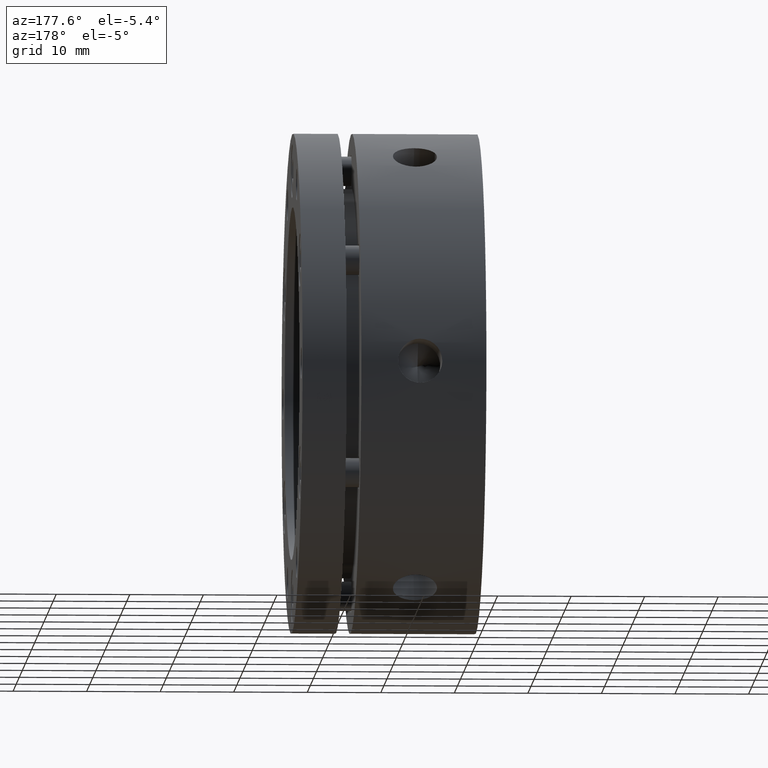
[diagram: clean part render]
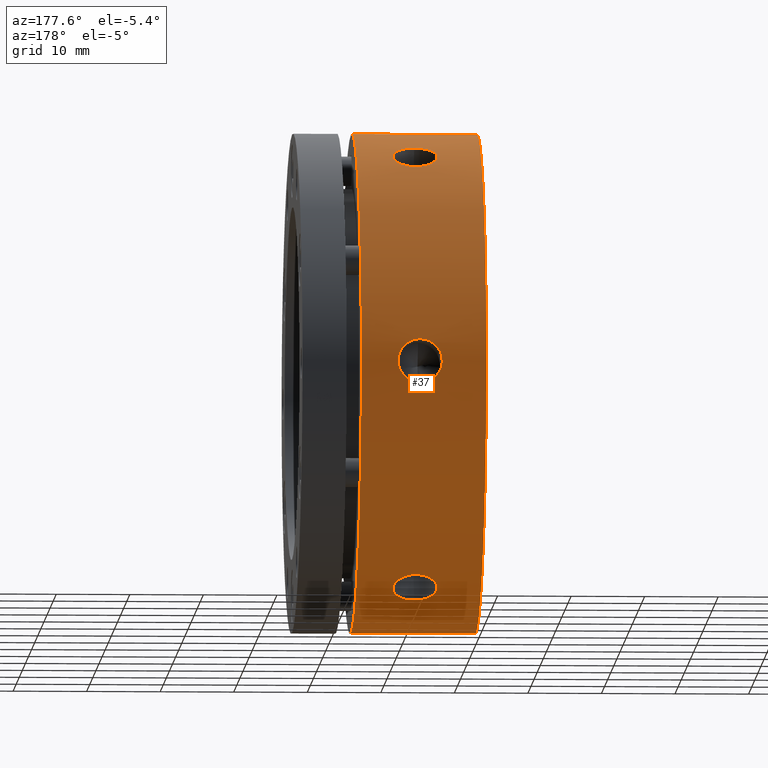
[diagram: same view with one face highlighted and labeled with its STEP entity id]
A machine part, auxiliary view. The second image highlights one B-rep face of the part: STEP entity #37.
In plain terms, the highlighted cylindrical surface (partial cylindrical patch) has radius 34 mm, axis along (1, 0, 0).
Its self-contained STEP definition (entity closure, byte-faithful):
#37 = ADVANCED_FACE ( 'NONE', ( #1741, #1748, #1744, #1743 ), #1752, .T. ) ;
#176 = DIRECTION ( 'NONE',  ( 0.0000000000000000000, 0.0000000000000000000, -1.000000000000000000 ) ) ;
#177 = CARTESIAN_POINT ( 'NONE',  ( 12.49999999999999300, 0.0000000000000000000, 0.0000000000000000000 ) ) ;
#178 = DIRECTION ( 'NONE',  ( 1.000000000000000000, 0.0000000000000000000, 0.0000000000000000000 ) ) ;
#592 = CARTESIAN_POINT ( 'NONE',  ( 8.999999999999989300, 14.33561801052278300, -30.83001875212493200 ) ) ;
#594 = CARTESIAN_POINT ( 'NONE',  ( 8.999999999999989300, 33.86738844375220500, 2.999999999999989300 ) ) ;
#595 = CARTESIAN_POINT ( 'NONE',  ( 8.999999999999989300, 33.86738844375219800, -3.000000000000011100 ) ) ;
#596 = CARTESIAN_POINT ( 'NONE',  ( -8.673617379884035500E-015, 4.163799117101000600E-015, 34.00000000000000000 ) ) ;
#597 = CARTESIAN_POINT ( 'NONE',  ( 16.99999999999999600, 0.0000000000000000000, -34.00000000000000000 ) ) ;
#599 = CARTESIAN_POINT ( 'NONE',  ( 8.999999999999989300, 19.53177043322941800, -27.83001875212493200 ) ) ;
#602 = CARTESIAN_POINT ( 'NONE',  ( 16.99999999999999600, 4.163799117101000600E-015, 34.00000000000000000 ) ) ;
#606 = CARTESIAN_POINT ( 'NONE',  ( 8.999999999999989300, 14.33561801052280800, 30.83001875212492100 ) ) ;
#607 = CARTESIAN_POINT ( 'NONE',  ( -8.673617379884035500E-015, 0.0000000000000000000, -34.00000000000000000 ) ) ;
#608 = CARTESIAN_POINT ( 'NONE',  ( 8.999999999999989300, 19.53177043322944300, 27.83001875212492100 ) ) ;
#1112 = EDGE_LOOP ( 'NONE', ( #3016, #3030 ) ) ;
#1114 = EDGE_LOOP ( 'NONE', ( #3050, #3045 ) ) ;
#1117 = EDGE_LOOP ( 'NONE', ( #2999, #3037, #3028, #2994 ) ) ;
#1120 = EDGE_LOOP ( 'NONE', ( #3036, #3025 ) ) ;
#1285 = VERTEX_POINT ( 'NONE', #595 ) ;
#1286 = VERTEX_POINT ( 'NONE', #596 ) ;
#1287 = VERTEX_POINT ( 'NONE', #592 ) ;
#1288 = VERTEX_POINT ( 'NONE', #597 ) ;
#1289 = VERTEX_POINT ( 'NONE', #599 ) ;
#1292 = VERTEX_POINT ( 'NONE', #594 ) ;
#1294 = VERTEX_POINT ( 'NONE', #602 ) ;
#1298 = VERTEX_POINT ( 'NONE', #606 ) ;
#1299 = VERTEX_POINT ( 'NONE', #607 ) ;
#1300 = VERTEX_POINT ( 'NONE', #608 ) ;
#1451 = EDGE_CURVE ( 'NONE', #1286, #1294, #2393, .T. ) ;
#1452 = EDGE_CURVE ( 'NONE', #1300, #1298, #2863, .T. ) ;
#1453 = EDGE_CURVE ( 'NONE', #1292, #1285, #2864, .T. ) ;
#1454 = EDGE_CURVE ( 'NONE', #1287, #1289, #2865, .T. ) ;
#1455 = EDGE_CURVE ( 'NONE', #1289, #1287, #2866, .T. ) ;
#1456 = EDGE_CURVE ( 'NONE', #1299, #1286, #2397, .T. ) ;
#1457 = EDGE_CURVE ( 'NONE', #1285, #1292, #2867, .T. ) ;
#1458 = EDGE_CURVE ( 'NONE', #1298, #1300, #2868, .T. ) ;
#1459 = EDGE_CURVE ( 'NONE', #1294, #1288, #2394, .T. ) ;
#1460 = EDGE_CURVE ( 'NONE', #1299, #1288, #2398, .T. ) ;
#1741 = FACE_BOUND ( 'NONE', #1120, .T. ) ;
#1743 = FACE_OUTER_BOUND ( 'NONE', #1117, .T. ) ;
#1744 = FACE_BOUND ( 'NONE', #1114, .T. ) ;
#1748 = FACE_BOUND ( 'NONE', #1112, .T. ) ;
#1752 = CYLINDRICAL_SURFACE ( 'NONE', #1926, 34.00000000000000000 ) ;
#1926 = AXIS2_PLACEMENT_3D ( 'NONE', #177, #178, #176 ) ;
#2105 = AXIS2_PLACEMENT_3D ( 'NONE', #4524, #4525, #4526 ) ;
#2106 = AXIS2_PLACEMENT_3D ( 'NONE', #4594, #4595, #4596 ) ;
#2393 = LINE ( 'NONE', #4383, #2396 ) ;
#2394 = CIRCLE ( 'NONE', #2106, 34.00000000000000000 ) ;
#2396 = VECTOR ( 'NONE', #4365, 1000.000000000000000 ) ;
#2397 = CIRCLE ( 'NONE', #2105, 34.00000000000000000 ) ;
#2398 = LINE ( 'NONE', #4561, #2400 ) ;
#2400 = VECTOR ( 'NONE', #4560, 1000.000000000000000 ) ;
#2863 = B_SPLINE_CURVE_WITH_KNOTS ( 'NONE', 3,
 ( #4387, #4369, #4390, #4391, #4392, #4393, #4394, #4395, #4396, #4397, #4398, #4399, #4400, #4401, #4402, #4403, #4404, #4405, #4406, #4407, #4408, #4409, #4410, #4411, #4412, #4413, #4414, #4415, #4416, #4417, #4418, #4419, #4420, #4421 ),
 .UNSPECIFIED., .F., .F.,
 ( 4, 2, 2, 2, 2, 2, 2, 2, 2, 2, 2, 2, 2, 2, 2, 2, 4 ),
 ( 0.004693045410762529700, 0.005279413698573366000, 0.005865781986384202200, 0.006452150274195037600, 0.007038518562005873800, 0.007624886849816710000, 0.008211255137627545400, 0.008797623425438381600, 0.009383991713249217900, 0.009970360001060054100, 0.01055672828887089000, 0.01114309657668172500, 0.01172946486449256300, 0.01231583315230339700, 0.01290220144011423400, 0.01348856972792507000, 0.01407493801573590600 ),
 .UNSPECIFIED. ) ;
#2864 = B_SPLINE_CURVE_WITH_KNOTS ( 'NONE', 3,
 ( #4382, #4388, #4424, #4425, #4426, #4427, #4428, #4429, #4430, #4431, #4432, #4433, #4434, #4435, #4436, #4437, #4438, #4439, #4440, #4441, #4442, #4443, #4444, #4445, #4446, #4447, #4448, #4449, #4450, #4451, #4452, #4453, #4454, #4455 ),
 .UNSPECIFIED., .F., .F.,
 ( 4, 2, 2, 2, 2, 2, 2, 2, 2, 2, 2, 2, 2, 2, 2, 2, 4 ),
 ( 0.01407493801573589000, 0.01466130630313676800, 0.01524767459053764600, 0.01583404287793852400, 0.01642041116533940100, 0.01700677945274027900, 0.01759314774014115700, 0.01817951602754203400, 0.01876588431494291200, 0.01935225260234379000, 0.01993862088974466700, 0.02052498917714554500, 0.02111135746454642300, 0.02169772575194730100, 0.02228409403934817800, 0.02287046232674905600, 0.02345683061414993400 ),
 .UNSPECIFIED. ) ;
#2865 = B_SPLINE_CURVE_WITH_KNOTS ( 'NONE', 3,
 ( #4389, #4422, #4457, #4458, #4459, #4460, #4461, #4462, #4463, #4464, #4465, #4466, #4467, #4468, #4469, #4470, #4471, #4472, #4473, #4474, #4475, #4476, #4477, #4478, #4479, #4480, #4481, #4482, #4483, #4484, #4485, #4486, #4487, #4488 ),
 .UNSPECIFIED., .F., .F.,
 ( 4, 2, 2, 2, 2, 2, 2, 2, 2, 2, 2, 2, 2, 2, 2, 2, 4 ),
 ( 0.004693045410762527100, 0.005279413698573366000, 0.005865781986384205700, 0.006452150274195044500, 0.007038518562005883400, 0.007624886849816723100, 0.008211255137627559300, 0.008797623425438393800, 0.009383991713249228300, 0.009970360001060066300, 0.01055672828887090100, 0.01114309657668173500, 0.01172946486449257000, 0.01231583315230340400, 0.01290220144011424200, 0.01348856972792507300, 0.01407493801573591100 ),
 .UNSPECIFIED. ) ;
#2866 = B_SPLINE_CURVE_WITH_KNOTS ( 'NONE', 3,
 ( #4423, #4456, #4490, #4491, #4492, #4493, #4494, #4495, #4496, #4497, #4498, #4499, #4500, #4501, #4502, #4503, #4504, #4505, #4506, #4507, #4508, #4509, #4510, #4511, #4512, #4513, #4514, #4515, #4516, #4517, #4518, #4519, #4520, #4521 ),
 .UNSPECIFIED., .F., .F.,
 ( 4, 2, 2, 2, 2, 2, 2, 2, 2, 2, 2, 2, 2, 2, 2, 2, 4 ),
 ( 0.01407493801573591100, 0.01466130630313678900, 0.01524767459053766800, 0.01583404287793854800, 0.01642041116533942600, 0.01700677945274030300, 0.01759314774014118100, 0.01817951602754206200, 0.01876588431494294000, 0.01935225260234381800, 0.01993862088974469900, 0.02052498917714557600, 0.02111135746454645400, 0.02169772575194733200, 0.02228409403934821000, 0.02287046232674909100, 0.02345683061414996800 ),
 .UNSPECIFIED. ) ;
#2867 = B_SPLINE_CURVE_WITH_KNOTS ( 'NONE', 3,
 ( #4522, #4523, #4528, #4529, #4530, #4531, #4532, #4533, #4534, #4535, #4536, #4537, #4538, #4539, #4540, #4541, #4542, #4543, #4544, #4545, #4546, #4547, #4548, #4549, #4550, #4551, #4552, #4553, #4554, #4555, #4556, #4557, #4558, #4559 ),
 .UNSPECIFIED., .F., .F.,
 ( 4, 2, 2, 2, 2, 2, 2, 2, 2, 2, 2, 2, 2, 2, 2, 2, 4 ),
 ( 0.004693045410762521100, 0.005279413698573355600, 0.005865781986384190900, 0.006452150274195025400, 0.007038518562005860800, 0.007624886849816695300, 0.008211255137627531500, 0.008797623425438367800, 0.009383991713249204000, 0.009970360001060038500, 0.01055672828887087500, 0.01114309657668171100, 0.01172946486449254700, 0.01231583315230338300, 0.01290220144011421800, 0.01348856972792505400, 0.01407493801573589000 ),
 .UNSPECIFIED. ) ;
#2868 = B_SPLINE_CURVE_WITH_KNOTS ( 'NONE', 3,
 ( #4489, #4527, #4562, #4563, #4564, #4565, #4566, #4567, #4568, #4569, #4570, #4571, #4572, #4573, #4574, #4575, #4576, #4577, #4578, #4579, #4580, #4581, #4582, #4583, #4584, #4585, #4586, #4587, #4588, #4589, #4590, #4591, #4592, #4593 ),
 .UNSPECIFIED., .F., .F.,
 ( 4, 2, 2, 2, 2, 2, 2, 2, 2, 2, 2, 2, 2, 2, 2, 2, 4 ),
 ( 0.01407493801573590600, 0.01466130630313678200, 0.01524767459053765600, 0.01583404287793853400, 0.01642041116533940800, 0.01700677945274028200, 0.01759314774014116400, 0.01817951602754204100, 0.01876588431494292200, 0.01935225260234380000, 0.01993862088974468100, 0.02052498917714556300, 0.02111135746454644000, 0.02169772575194731800, 0.02228409403934819900, 0.02287046232674908000, 0.02345683061414995800 ),
 .UNSPECIFIED. ) ;
#2994 = ORIENTED_EDGE ( 'NONE', *, *, #1460, .F. ) ;
#2999 = ORIENTED_EDGE ( 'NONE', *, *, #1456, .T. ) ;
#3016 = ORIENTED_EDGE ( 'NONE', *, *, #1453, .T. ) ;
#3025 = ORIENTED_EDGE ( 'NONE', *, *, #1452, .T. ) ;
#3028 = ORIENTED_EDGE ( 'NONE', *, *, #1459, .T. ) ;
#3030 = ORIENTED_EDGE ( 'NONE', *, *, #1457, .T. ) ;
#3036 = ORIENTED_EDGE ( 'NONE', *, *, #1458, .T. ) ;
#3037 = ORIENTED_EDGE ( 'NONE', *, *, #1451, .T. ) ;
#3045 = ORIENTED_EDGE ( 'NONE', *, *, #1454, .T. ) ;
#3050 = ORIENTED_EDGE ( 'NONE', *, *, #1455, .T. ) ;
#4365 = DIRECTION ( 'NONE',  ( 1.000000000000000000, 0.0000000000000000000, 0.0000000000000000000 ) ) ;
#4369 = CARTESIAN_POINT ( 'NONE',  ( 9.195737869224784000, 19.53177043322943600, 27.83001875212491400 ) ) ;
#4382 = CARTESIAN_POINT ( 'NONE',  ( 8.999999999999989300, 33.86738844375220500, 2.999999999999989300 ) ) ;
#4383 = CARTESIAN_POINT ( 'NONE',  ( 12.49999999999999300, 4.163799117101000600E-015, 34.00000000000000000 ) ) ;
#4387 = CARTESIAN_POINT ( 'NONE',  ( 8.999999999999989300, 19.53177043322944300, 27.83001875212492100 ) ) ;
#4388 = CARTESIAN_POINT ( 'NONE',  ( 8.804262436201771200, 33.86738844375219800, 2.999999999999988900 ) ) ;
#4389 = CARTESIAN_POINT ( 'NONE',  ( 8.999999999999989300, 14.33561801052278300, -30.83001875212493200 ) ) ;
#4390 = CARTESIAN_POINT ( 'NONE',  ( 9.394559646420139700, 19.51567472608580900, 27.84133480725523300 ) ) ;
#4391 = CARTESIAN_POINT ( 'NONE',  ( 9.779291775332152900, 19.45253795053447700, 27.88548459588037400 ) ) ;
#4392 = CARTESIAN_POINT ( 'NONE',  ( 9.966297107354900900, 19.40584100357654800, 27.91807712685789900 ) ) ;
#4393 = CARTESIAN_POINT ( 'NONE',  ( 10.32952987168563800, 19.28171276856249600, 28.00395058251484000 ) ) ;
#4394 = CARTESIAN_POINT ( 'NONE',  ( 10.50501856181715300, 19.20405839245953000, 28.05736979078229600 ) ) ;
#4395 = CARTESIAN_POINT ( 'NONE',  ( 10.82988062275185600, 19.02394079909517900, 28.17980721705207300 ) ) ;
#4396 = CARTESIAN_POINT ( 'NONE',  ( 10.98132891793675400, 18.92086156325136400, 28.24925988576020000 ) ) ;
#4397 = CARTESIAN_POINT ( 'NONE',  ( 11.26138848038109500, 18.68706801555676500, 28.40445696314046100 ) ) ;
#4398 = CARTESIAN_POINT ( 'NONE',  ( 11.38543298358010800, 18.56014395922066000, 28.48767271015469000 ) ) ;
#4399 = CARTESIAN_POINT ( 'NONE',  ( 11.60258235896853500, 18.28681741466101900, 28.66389277594265300 ) ) ;
#4400 = CARTESIAN_POINT ( 'NONE',  ( 11.69649053039206200, 18.13863393304181700, 28.75800765849965800 ) ) ;
#4401 = CARTESIAN_POINT ( 'NONE',  ( 11.84696623581782900, 17.83009118370078000, 28.95031768088454200 ) ) ;
#4402 = CARTESIAN_POINT ( 'NONE',  ( 11.90367932395627900, 17.67057719593540100, 29.04802369508009700 ) ) ;
#4403 = CARTESIAN_POINT ( 'NONE',  ( 11.98038884191967000, 17.34087397966189000, 29.24604364095992200 ) ) ;
#4404 = CARTESIAN_POINT ( 'NONE',  ( 12.00014044187054700, 17.16984809131699000, 29.34681619639205900 ) ) ;
#4405 = CARTESIAN_POINT ( 'NONE',  ( 11.99985803629614100, 16.82645096355333100, 29.54504784756416300 ) ) ;
#4406 = CARTESIAN_POINT ( 'NONE',  ( 11.98026038079706800, 16.65677093671913100, 29.64099783978272700 ) ) ;
#4407 = CARTESIAN_POINT ( 'NONE',  ( 11.90374596870118800, 16.32137567406768500, 29.82699225671751400 ) ) ;
#4408 = CARTESIAN_POINT ( 'NONE',  ( 11.84589093356736800, 16.15389048204994500, 29.91796816839747600 ) ) ;
#4409 = CARTESIAN_POINT ( 'NONE',  ( 11.69506250371917800, 15.83329365004482400, 30.08886520330667100 ) ) ;
#4410 = CARTESIAN_POINT ( 'NONE',  ( 11.60280974289714700, 15.68052617812432800, 30.16865446060871700 ) ) ;
#4411 = CARTESIAN_POINT ( 'NONE',  ( 11.38490948326933400, 15.39030627934175600, 30.31773549944821500 ) ) ;
#4412 = CARTESIAN_POINT ( 'NONE',  ( 11.25817711614571200, 15.25238621908396300, 30.38723228131401700 ) ) ;
#4413 = CARTESIAN_POINT ( 'NONE',  ( 10.98139848037417300, 15.00438986824666900, 30.51044830506906200 ) ) ;
#4414 = CARTESIAN_POINT ( 'NONE',  ( 10.83036930955069900, 14.89266126381836000, 30.56502425648730200 ) ) ;
#4415 = CARTESIAN_POINT ( 'NONE',  ( 10.50234688077007100, 14.69484598681106700, 30.66061918393684100 ) ) ;
#4416 = CARTESIAN_POINT ( 'NONE',  ( 10.32786511213645600, 14.61061365072040100, 30.70074246522616700 ) ) ;
#4417 = CARTESIAN_POINT ( 'NONE',  ( 9.966875255423062200, 14.47509806434885600, 30.76486884734342900 ) ) ;
#4418 = CARTESIAN_POINT ( 'NONE',  ( 9.777695118847106000, 14.42280303245540700, 30.78935272015213100 ) ) ;
#4419 = CARTESIAN_POINT ( 'NONE',  ( 9.390434657445860400, 14.35289643267690700, 30.82200272908616900 ) ) ;
#4420 = CARTESIAN_POINT ( 'NONE',  ( 9.195737563935063400, 14.33561801052281100, 30.83001875212492800 ) ) ;
#4421 = CARTESIAN_POINT ( 'NONE',  ( 8.999999999999989300, 14.33561801052280800, 30.83001875212492100 ) ) ;
#4422 = CARTESIAN_POINT ( 'NONE',  ( 9.195737869224785800, 14.33561801052278500, -30.83001875212493600 ) ) ;
#4423 = CARTESIAN_POINT ( 'NONE',  ( 8.999999999999989300, 19.53177043322941800, -27.83001875212493200 ) ) ;
#4424 = CARTESIAN_POINT ( 'NONE',  ( 8.605440970800671600, 33.86914057581145700, 2.980402743067518000 ) ) ;
#4425 = CARTESIAN_POINT ( 'NONE',  ( 8.220709408438608500, 33.87580700651501100, 2.903650032684897700 ) ) ;
#4426 = CARTESIAN_POINT ( 'NONE',  ( 8.033704343561995000, 33.88068447841339300, 2.846913197848489400 ) ) ;
#4427 = CARTESIAN_POINT ( 'NONE',  ( 7.670472078097009900, 33.89298891991190000, 2.696478732831986100 ) ) ;
#4428 = CARTESIAN_POINT ( 'NONE',  ( 7.494983569670660400, 33.90042410450594400, 2.602518738379587100 ) ) ;
#4429 = CARTESIAN_POINT ( 'NONE',  ( 7.170121807952789100, 33.91639919283201000, 2.385314243752421500 ) ) ;
#4430 = CARTESIAN_POINT ( 'NONE',  ( 7.018673629526707800, 33.92500733232649400, 2.261319033757622800 ) ) ;
#4431 = CARTESIAN_POINT ( 'NONE',  ( 6.738614216169347400, 33.94251513920831100, 1.981250184973119200 ) ) ;
#4432 = CARTESIAN_POINT ( 'NONE',  ( 6.614569631254604500, 33.95112005734482400, 1.829723187073879900 ) ) ;
#4433 = CARTESIAN_POINT ( 'NONE',  ( 6.397420108754104700, 33.96706783333567600, 1.504906274533766500 ) ) ;
#4434 = CARTESIAN_POINT ( 'NONE',  ( 6.303511815639663700, 33.97448197429600500, 1.329518665573301300 ) ) ;
#4435 = CARTESIAN_POINT ( 'NONE',  ( 6.153035644562744500, 33.98675599309972700, 0.9661585632661206000 ) ) ;
#4436 = CARTESIAN_POINT ( 'NONE',  ( 6.096322277939021800, 33.99161491041346700, 0.7791627876697400100 ) ) ;
#4437 = CARTESIAN_POINT ( 'NONE',  ( 6.019612069823393700, 33.99825366277792700, 0.3946222864209679200 ) ) ;
#4438 = CARTESIAN_POINT ( 'NONE',  ( 5.999860042777521900, 34.00001234916360500, 0.1961243387836260100 ) ) ;
#4439 = CARTESIAN_POINT ( 'NONE',  ( 6.000141468507668400, 33.99998751748773200, -0.2003829089989571700 ) ) ;
#4440 = CARTESIAN_POINT ( 'NONE',  ( 6.019738718383950800, 33.99824267048908400, -0.3953054974115624000 ) ) ;
#4441 = CARTESIAN_POINT ( 'NONE',  ( 6.096252427142200500, 33.99162098726159100, -0.7787642622167414400 ) ) ;
#4442 = CARTESIAN_POINT ( 'NONE',  ( 6.154107150678171000, 33.98666586533091300, -0.9692990025885870300 ) ) ;
#4443 = CARTESIAN_POINT ( 'NONE',  ( 6.304935179524337100, 33.97436864635446300, -1.332393440270123400 ) ) ;
#4444 = CARTESIAN_POINT ( 'NONE',  ( 6.397187802308518900, 33.96708443834720700, -1.504589005316420800 ) ) ;
#4445 = CARTESIAN_POINT ( 'NONE',  ( 6.615087875966736400, 33.95108245321080200, -1.830468129198039600 ) ) ;
#4446 = CARTESIAN_POINT ( 'NONE',  ( 6.741820238327548500, 33.94230839163808600, -1.984659227821984600 ) ) ;
#4447 = CARTESIAN_POINT ( 'NONE',  ( 7.018598987214525100, 33.92501839484402400, -2.261039166652957500 ) ) ;
#4448 = CARTESIAN_POINT ( 'NONE',  ( 7.169628256155201400, 33.91641823604722800, -2.385087298971986200 ) ) ;
#4449 = CARTESIAN_POINT ( 'NONE',  ( 7.497650951073001800, 33.90029819790121500, -2.604198433217231200 ) ) ;
#4450 = CARTESIAN_POINT ( 'NONE',  ( 7.672132963782241100, 33.89292978941953300, -2.697207721008228400 ) ) ;
#4451 = CARTESIAN_POINT ( 'NONE',  ( 8.033123291981507200, 33.88070703827115400, -2.846631305180117500 ) ) ;
#4452 = CARTESIAN_POINT ( 'NONE',  ( 8.222303677041292500, 33.87576316389686300, -2.904162239251945700 ) ) ;
#4453 = CARTESIAN_POINT ( 'NONE',  ( 8.609564735460345700, 33.86908558053324500, -2.981028377396668400 ) ) ;
#4454 = CARTESIAN_POINT ( 'NONE',  ( 8.804262130912045200, 33.86738844375220500, -3.000000000000011500 ) ) ;
#4455 = CARTESIAN_POINT ( 'NONE',  ( 8.999999999999989300, 33.86738844375219800, -3.000000000000011100 ) ) ;
#4456 = CARTESIAN_POINT ( 'NONE',  ( 8.804262436201771200, 19.53177043322942200, -27.83001875212492800 ) ) ;
#4457 = CARTESIAN_POINT ( 'NONE',  ( 9.394559646420139700, 14.35346585530807300, -30.82173748841184100 ) ) ;
#4458 = CARTESIAN_POINT ( 'NONE',  ( 9.779291775332152900, 14.42326908160483400, -30.78913433118390600 ) ) ;
#4459 = CARTESIAN_POINT ( 'NONE',  ( 9.966297107354900900, 14.47484351488395900, -30.76498985432792600 ) ) ;
#4460 = CARTESIAN_POINT ( 'NONE',  ( 10.32952987168564200, 14.61127622650064800, -30.70042837730729700 ) ) ;
#4461 = CARTESIAN_POINT ( 'NONE',  ( 10.50501856181715100, 14.69636580596180100, -30.65988731902083900 ) ) ;
#4462 = CARTESIAN_POINT ( 'NONE',  ( 10.82988062275185500, 14.89245852416758400, -30.56511962063368800 ) ) ;
#4463 = CARTESIAN_POINT ( 'NONE',  ( 10.98132891793675700, 15.00414591755136200, -30.51057671814432100 ) ) ;
#4464 = CARTESIAN_POINT ( 'NONE',  ( 11.26138848038109500, 15.25544730300306800, -30.38570410529002800 ) ) ;
#4465 = CARTESIAN_POINT ( 'NONE',  ( 11.38543298358011300, 15.39097628208034300, -30.31739252165871100 ) ) ;
#4466 = CARTESIAN_POINT ( 'NONE',  ( 11.60258235896853800, 15.68025060798910400, -30.16879482343542700 ) ) ;
#4467 = CARTESIAN_POINT ( 'NONE',  ( 11.69649053039206200, 15.83584822796726300, -30.08752160521045800 ) ) ;
#4468 = CARTESIAN_POINT ( 'NONE',  ( 11.84696623581783300, 16.15666496742543900, -29.91647075732009900 ) ) ;
#4469 = CARTESIAN_POINT ( 'NONE',  ( 11.90367932395628600, 16.32103785170402000, -29.82718059875410100 ) ) ;
#4470 = CARTESIAN_POINT ( 'NONE',  ( 11.98038884191967100, 16.65737976342871100, -29.64065921069170500 ) ) ;
#4471 = CARTESIAN_POINT ( 'NONE',  ( 12.00014044187054900, 16.83016430060965600, -29.54293272439629400 ) ) ;
#4472 = CARTESIAN_POINT ( 'NONE',  ( 11.99985803629613400, 17.17353651024067000, -29.34465791375240300 ) ) ;
#4473 = CARTESIAN_POINT ( 'NONE',  ( 11.98026038079706400, 17.34147165441196500, -29.24568569610843100 ) ) ;
#4474 = CARTESIAN_POINT ( 'NONE',  ( 11.90374596870118800, 17.67024517576528500, -29.04822208681073500 ) ) ;
#4475 = CARTESIAN_POINT ( 'NONE',  ( 11.84589093356737500, 17.83277522242146400, -28.94866361160563900 ) ) ;
#4476 = CARTESIAN_POINT ( 'NONE',  ( 11.69506250371917300, 18.14107481208681000, -28.75646712817096800 ) ) ;
#4477 = CARTESIAN_POINT ( 'NONE',  ( 11.60280974289713800, 18.28655807181972300, -28.66406124526691800 ) ) ;
#4478 = CARTESIAN_POINT ( 'NONE',  ( 11.38490948326933600, 18.56077598806859500, -28.48726395965721300 ) ) ;
#4479 = CARTESIAN_POINT ( 'NONE',  ( 11.25817711614571200, 18.68992199677454400, -28.40257007471538800 ) ) ;
#4480 = CARTESIAN_POINT ( 'NONE',  ( 10.98139848037416800, 18.92062837891836200, -28.24940694672197600 ) ) ;
#4481 = CARTESIAN_POINT ( 'NONE',  ( 10.83036930955069400, 19.02375684149642200, -28.17993511266679400 ) ) ;
#4482 = CARTESIAN_POINT ( 'NONE',  ( 10.50234688077006800, 19.20545211564430600, -28.05641952124659600 ) ) ;
#4483 = CARTESIAN_POINT ( 'NONE',  ( 10.32786511213645200, 19.28231606456937500, -28.00353381901664200 ) ) ;
#4484 = CARTESIAN_POINT ( 'NONE',  ( 9.966875255423062200, 19.40560893372149200, -27.91823706966878000 ) ) ;
#4485 = CARTESIAN_POINT ( 'NONE',  ( 9.777695118847106000, 19.45296010550357800, -27.88519017996167900 ) ) ;
#4486 = CARTESIAN_POINT ( 'NONE',  ( 9.390434657445856800, 19.51618914256347600, -27.84097429312831200 ) ) ;
#4487 = CARTESIAN_POINT ( 'NONE',  ( 9.195737563935061600, 19.53177043322941500, -27.83001875212493200 ) ) ;
#4488 = CARTESIAN_POINT ( 'NONE',  ( 8.999999999999989300, 19.53177043322941800, -27.83001875212493200 ) ) ;
#4489 = CARTESIAN_POINT ( 'NONE',  ( 8.999999999999989300, 14.33561801052280800, 30.83001875212492100 ) ) ;
#4490 = CARTESIAN_POINT ( 'NONE',  ( 8.605440970800671600, 19.51567477691103700, -27.84133477146527400 ) ) ;
#4491 = CARTESIAN_POINT ( 'NONE',  ( 8.220709408438610300, 19.45253819526215400, -27.88548442499842400 ) ) ;
#4492 = CARTESIAN_POINT ( 'NONE',  ( 8.033704343561996800, 19.40584139091269100, -27.91807685698688200 ) ) ;
#4493 = CARTESIAN_POINT ( 'NONE',  ( 7.670472078097012600, 19.28171354335293600, -28.00395004841221800 ) ) ;
#4494 = CARTESIAN_POINT ( 'NONE',  ( 7.494983569670661300, 19.20405939351472200, -28.05736910437866500 ) ) ;
#4495 = CARTESIAN_POINT ( 'NONE',  ( 7.170121807952789100, 19.02394232751447900, -28.17980618401033200 ) ) ;
#4496 = CARTESIAN_POINT ( 'NONE',  ( 7.018673629526711400, 18.92086339545863900, -28.24925865648927100 ) ) ;
#4497 = CARTESIAN_POINT ( 'NONE',  ( 6.738614216169352700, 18.68707056104350200, -28.40445528640572400 ) ) ;
#4498 = CARTESIAN_POINT ( 'NONE',  ( 6.614569631254608100, 18.56014679057183500, -28.48767086305906900 ) ) ;
#4499 = CARTESIAN_POINT ( 'NONE',  ( 6.397420108754107400, 18.28682098072869900, -28.66389049847105900 ) ) ;
#4500 = CARTESIAN_POINT ( 'NONE',  ( 6.303511815639666300, 18.13863792634008100, -28.75800513737017600 ) ) ;
#4501 = CARTESIAN_POINT ( 'NONE',  ( 6.153035644562744500, 17.83009585642221100, -28.95031480061429700 ) ) ;
#4502 = CARTESIAN_POINT ( 'NONE',  ( 6.096322277939022700, 17.67058222301225400, -29.04802063424111200 ) ) ;
#4503 = CARTESIAN_POINT ( 'NONE',  ( 6.019612069823391900, 17.34087975632904100, -29.24604021306254300 ) ) ;
#4504 = CARTESIAN_POINT ( 'NONE',  ( 5.999860042777521900, 17.16985483426886100, -29.34681225396848700 ) ) ;
#4505 = CARTESIAN_POINT ( 'NONE',  ( 6.000141468507668400, 16.82645706906654900, -29.54504437299766200 ) ) ;
#4506 = CARTESIAN_POINT ( 'NONE',  ( 6.019738718383951700, 16.65677673223050100, -29.64099458537741700 ) ) ;
#4507 = CARTESIAN_POINT ( 'NONE',  ( 6.096252427142199600, 16.32138085899167000, -29.82698942188918400 ) ) ;
#4508 = CARTESIAN_POINT ( 'NONE',  ( 6.154107150678169300, 16.15389537256082900, -29.91796553060428100 ) ) ;
#4509 = CARTESIAN_POINT ( 'NONE',  ( 6.304935179524337100, 15.83329775606756900, -30.08886304541554300 ) ) ;
#4510 = CARTESIAN_POINT ( 'NONE',  ( 6.397187802308518900, 15.68052991831483200, -30.16865251875796600 ) ) ;
#4511 = CARTESIAN_POINT ( 'NONE',  ( 6.615087875966738200, 15.39030932590213000, -30.31773395505966900 ) ) ;
#4512 = CARTESIAN_POINT ( 'NONE',  ( 6.741820238327545800, 15.25238888667001000, -30.38723094415530600 ) ) ;
#4513 = CARTESIAN_POINT ( 'NONE',  ( 7.018598987214522500, 15.00439184014896600, -30.51044733711577800 ) ) ;
#4514 = CARTESIAN_POINT ( 'NONE',  ( 7.169628256155199600, 14.89266292687028000, -30.56502344728069100 ) ) ;
#4515 = CARTESIAN_POINT ( 'NONE',  ( 7.497650951073000100, 14.69484709928886600, -30.66061865185888600 ) ) ;
#4516 = CARTESIAN_POINT ( 'NONE',  ( 7.672132963782239300, 14.61061448903312200, -30.70074206682379300 ) ) ;
#4517 = CARTESIAN_POINT ( 'NONE',  ( 8.033123291981507200, 14.47509849364155900, -30.76486864591111500 ) ) ;
#4518 = CARTESIAN_POINT ( 'NONE',  ( 8.222303677041296100, 14.42280330604475400, -30.78935259214575700 ) ) ;
#4519 = CARTESIAN_POINT ( 'NONE',  ( 8.609564735460347500, 14.35289648603880500, -30.82200270438933000 ) ) ;
#4520 = CARTESIAN_POINT ( 'NONE',  ( 8.804262130912043500, 14.33561801052278600, -30.83001875212493600 ) ) ;
#4521 = CARTESIAN_POINT ( 'NONE',  ( 8.999999999999989300, 14.33561801052278300, -30.83001875212493200 ) ) ;
#4522 = CARTESIAN_POINT ( 'NONE',  ( 8.999999999999989300, 33.86738844375219800, -3.000000000000011100 ) ) ;
#4523 = CARTESIAN_POINT ( 'NONE',  ( 9.195737869224782200, 33.86738844375219100, -3.000000000000010200 ) ) ;
#4524 = CARTESIAN_POINT ( 'NONE',  ( -8.673617379884035500E-015, 0.0000000000000000000, 0.0000000000000000000 ) ) ;
#4525 = DIRECTION ( 'NONE',  ( 1.000000000000000000, 0.0000000000000000000, 0.0000000000000000000 ) ) ;
#4526 = DIRECTION ( 'NONE',  ( 0.0000000000000000000, 0.0000000000000000000, -1.000000000000000000 ) ) ;
#4527 = CARTESIAN_POINT ( 'NONE',  ( 8.804262436201769400, 14.33561801052280900, 30.83001875212492500 ) ) ;
#4528 = CARTESIAN_POINT ( 'NONE',  ( 9.394559646420136200, 33.86914058139385000, -2.980402681156599800 ) ) ;
#4529 = CARTESIAN_POINT ( 'NONE',  ( 9.779291775332149300, 33.87580703213927800, -2.903649735303532400 ) ) ;
#4530 = CARTESIAN_POINT ( 'NONE',  ( 9.966297107354899200, 33.88068451846048400, -2.846912727470032300 ) ) ;
#4531 = CARTESIAN_POINT ( 'NONE',  ( 10.32952987168563500, 33.89298899506312800, -2.696477794792469900 ) ) ;
#4532 = CARTESIAN_POINT ( 'NONE',  ( 10.50501856181714900, 33.90042419842131900, -2.602517528238544200 ) ) ;
#4533 = CARTESIAN_POINT ( 'NONE',  ( 10.82988062275185100, 33.91639932326275200, -2.385312403581613300 ) ) ;
#4534 = CARTESIAN_POINT ( 'NONE',  ( 10.98132891793675200, 33.92500748080269800, -2.261316832384116200 ) ) ;
#4535 = CARTESIAN_POINT ( 'NONE',  ( 11.26138848038109300, 33.94251531855979900, -1.981247142149567900 ) ) ;
#4536 = CARTESIAN_POINT ( 'NONE',  ( 11.38543298358010800, 33.95112024130097700, -1.829719811504018700 ) ) ;
#4537 = CARTESIAN_POINT ( 'NONE',  ( 11.60258235896853800, 33.96706802265010300, -1.504902047492775500 ) ) ;
#4538 = CARTESIAN_POINT ( 'NONE',  ( 11.69649053039206300, 33.97448216100905000, -1.329513946710811500 ) ) ;
#4539 = CARTESIAN_POINT ( 'NONE',  ( 11.84696623581783300, 33.98675615112621500, -0.9661530764355471500 ) ) ;
#4540 = CARTESIAN_POINT ( 'NONE',  ( 11.90367932395628100, 33.99161504763938500, -0.7791569036739851600 ) ) ;
#4541 = CARTESIAN_POINT ( 'NONE',  ( 11.98038884191967100, 33.99825374309058600, -0.3946155697317776400 ) ) ;
#4542 = CARTESIAN_POINT ( 'NONE',  ( 12.00014044187054700, 34.00001239192662400, -0.1961165280042319600 ) ) ;
#4543 = CARTESIAN_POINT ( 'NONE',  ( 11.99985803629613900, 33.99998747379397900, 0.2003899338117612300 ) ) ;
#4544 = CARTESIAN_POINT ( 'NONE',  ( 11.98026038079706800, 33.99824259113107400, 0.3953121436742953500 ) ) ;
#4545 = CARTESIAN_POINT ( 'NONE',  ( 11.90374596870118800, 33.99162084983296200, 0.7787701699067863800 ) ) ;
#4546 = CARTESIAN_POINT ( 'NONE',  ( 11.84589093356736800, 33.98666570447138500, 0.9693045567918460200 ) ) ;
#4547 = CARTESIAN_POINT ( 'NONE',  ( 11.69506250371918200, 33.97436846213162200, 1.332398075135694700 ) ) ;
#4548 = CARTESIAN_POINT ( 'NONE',  ( 11.60280974289714500, 33.96708424994402300, 1.504593215341788000 ) ) ;
#4549 = CARTESIAN_POINT ( 'NONE',  ( 11.38490948326933600, 33.95108226741031400, 1.830471539790996700 ) ) ;
#4550 = CARTESIAN_POINT ( 'NONE',  ( 11.25817711614571300, 33.94230821585847500, 1.984662206598628400 ) ) ;
#4551 = CARTESIAN_POINT ( 'NONE',  ( 10.98139848037416800, 33.92501824716501300, 2.261041358347081900 ) ) ;
#4552 = CARTESIAN_POINT ( 'NONE',  ( 10.83036930955069900, 33.91641810531475400, 2.385089143820506000 ) ) ;
#4553 = CARTESIAN_POINT ( 'NONE',  ( 10.50234688077006800, 33.90029810245533800, 2.604199662690245300 ) ) ;
#4554 = CARTESIAN_POINT ( 'NONE',  ( 10.32786511213645800, 33.89292971528975300, 2.697208646209531900 ) ) ;
#4555 = CARTESIAN_POINT ( 'NONE',  ( 9.966875255423062200, 33.88070699807033700, 2.846631777674662800 ) ) ;
#4556 = CARTESIAN_POINT ( 'NONE',  ( 9.777695118847107700, 33.87576313795894800, 2.904162540190462900 ) ) ;
#4557 = CARTESIAN_POINT ( 'NONE',  ( 9.390434657445858600, 33.86908557524036900, 2.981028435957846100 ) ) ;
#4558 = CARTESIAN_POINT ( 'NONE',  ( 9.195737563935061600, 33.86738844375219800, 2.999999999999989300 ) ) ;
#4559 = CARTESIAN_POINT ( 'NONE',  ( 8.999999999999989300, 33.86738844375220500, 2.999999999999989300 ) ) ;
#4560 = DIRECTION ( 'NONE',  ( 1.000000000000000000, 0.0000000000000000000, 0.0000000000000000000 ) ) ;
#4561 = CARTESIAN_POINT ( 'NONE',  ( 12.49999999999999300, 0.0000000000000000000, -34.00000000000000000 ) ) ;
#4562 = CARTESIAN_POINT ( 'NONE',  ( 8.605440970800671600, 14.35346579890044400, 30.82173751453278100 ) ) ;
#4563 = CARTESIAN_POINT ( 'NONE',  ( 8.220709408438613900, 14.42326881125288000, 30.78913445768333200 ) ) ;
#4564 = CARTESIAN_POINT ( 'NONE',  ( 8.033704343561996800, 14.47484308750073000, 30.76499005483537600 ) ) ;
#4565 = CARTESIAN_POINT ( 'NONE',  ( 7.670472078097014400, 14.61127537655899800, 30.70042878124420900 ) ) ;
#4566 = CARTESIAN_POINT ( 'NONE',  ( 7.494983569670660400, 14.69636471099122800, 30.65988784275825600 ) ) ;
#4567 = CARTESIAN_POINT ( 'NONE',  ( 7.170121807952789100, 14.89245686531755400, 30.56512042776275000 ) ) ;
#4568 = CARTESIAN_POINT ( 'NONE',  ( 7.018673629526710500, 15.00414393686787700, 30.51057769024689400 ) ) ;
#4569 = CARTESIAN_POINT ( 'NONE',  ( 6.738614216169350100, 15.25544457816482200, 30.38570547137883800 ) ) ;
#4570 = CARTESIAN_POINT ( 'NONE',  ( 6.614569631254606300, 15.39097326677301700, 30.31739405013294000 ) ) ;
#4571 = CARTESIAN_POINT ( 'NONE',  ( 6.397420108754106500, 15.68024685260700000, 30.16879677300481800 ) ) ;
#4572 = CARTESIAN_POINT ( 'NONE',  ( 6.303511815639665400, 15.83584404795594700, 30.08752380294347600 ) ) ;
#4573 = CARTESIAN_POINT ( 'NONE',  ( 6.153035644562745400, 16.15666013667753700, 29.91647336388042800 ) ) ;
#4574 = CARTESIAN_POINT ( 'NONE',  ( 6.096322277939023600, 16.32103268740126400, 29.82718342191085300 ) ) ;
#4575 = CARTESIAN_POINT ( 'NONE',  ( 6.019612069823392800, 16.65737390644892500, 29.64066249948351500 ) ) ;
#4576 = CARTESIAN_POINT ( 'NONE',  ( 5.999860042777521100, 16.83015751489476800, 29.54293659275211000 ) ) ;
#4577 = CARTESIAN_POINT ( 'NONE',  ( 6.000141468507670200, 17.17353044842120700, 29.34466146399871200 ) ) ;
#4578 = CARTESIAN_POINT ( 'NONE',  ( 6.019738718383951700, 17.34146593825861500, 29.24568908796585700 ) ) ;
#4579 = CARTESIAN_POINT ( 'NONE',  ( 6.096252427142201400, 17.67024012826996000, 29.04822515967245200 ) ) ;
#4580 = CARTESIAN_POINT ( 'NONE',  ( 6.154107150678170200, 17.83277049277010200, 28.94866652801570000 ) ) ;
#4581 = CARTESIAN_POINT ( 'NONE',  ( 6.304935179524338000, 18.14107089028691500, 28.75646960514542300 ) ) ;
#4582 = CARTESIAN_POINT ( 'NONE',  ( 6.397187802308518900, 18.28655452003239600, 28.66406351344154400 ) ) ;
#4583 = CARTESIAN_POINT ( 'NONE',  ( 6.615087875966737300, 18.56077312730869600, 28.48726582586163400 ) ) ;
#4584 = CARTESIAN_POINT ( 'NONE',  ( 6.741820238327551200, 18.68991950496811300, 28.40257171633332300 ) ) ;
#4585 = CARTESIAN_POINT ( 'NONE',  ( 7.018598987214526000, 18.92062655469509000, 28.24940817046282100 ) ) ;
#4586 = CARTESIAN_POINT ( 'NONE',  ( 7.169628256155202300, 19.02375530917699100, 28.17993614830872000 ) ) ;
#4587 = CARTESIAN_POINT ( 'NONE',  ( 7.497650951073001800, 19.20545109861237900, 28.05642021864165900 ) ) ;
#4588 = CARTESIAN_POINT ( 'NONE',  ( 7.672132963782241100, 19.28231530038643300, 28.00353434581555900 ) ) ;
#4589 = CARTESIAN_POINT ( 'NONE',  ( 8.033123291981505400, 19.40560854462962200, 27.91823734073097200 ) ) ;
#4590 = CARTESIAN_POINT ( 'NONE',  ( 8.222303677041287200, 19.45295985785211800, 27.88519035289379400 ) ) ;
#4591 = CARTESIAN_POINT ( 'NONE',  ( 8.609564735460342200, 19.51618909449445000, 27.84097432699266500 ) ) ;
#4592 = CARTESIAN_POINT ( 'NONE',  ( 8.804262130912045200, 19.53177043322943600, 27.83001875212491400 ) ) ;
#4593 = CARTESIAN_POINT ( 'NONE',  ( 8.999999999999989300, 19.53177043322944300, 27.83001875212492100 ) ) ;
#4594 = CARTESIAN_POINT ( 'NONE',  ( 16.99999999999999600, 0.0000000000000000000, 0.0000000000000000000 ) ) ;
#4595 = DIRECTION ( 'NONE',  ( -1.000000000000000000, -0.0000000000000000000, -0.0000000000000000000 ) ) ;
#4596 = DIRECTION ( 'NONE',  ( 0.0000000000000000000, 0.0000000000000000000, -1.000000000000000000 ) ) ;